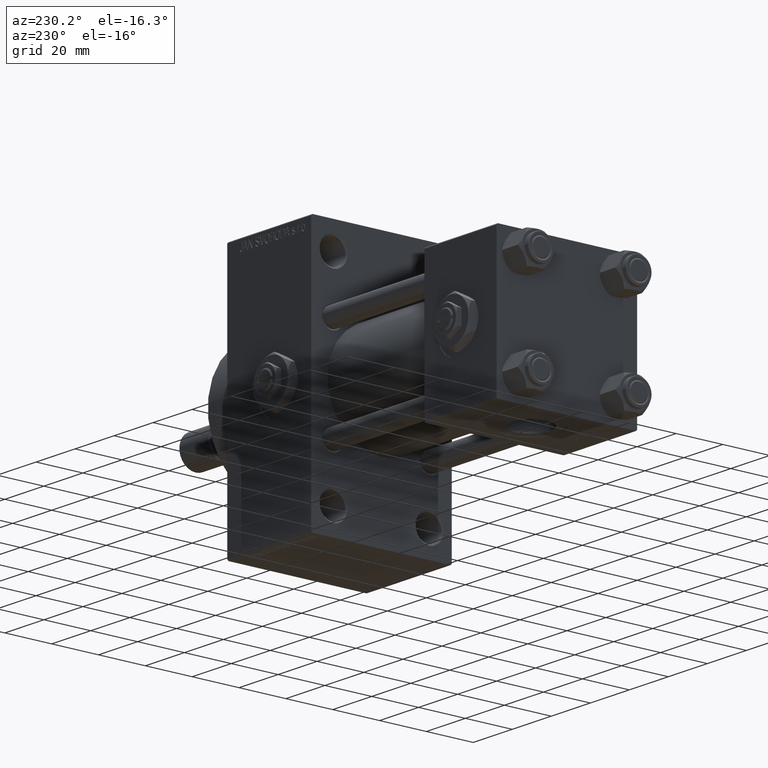
[diagram: clean part render]
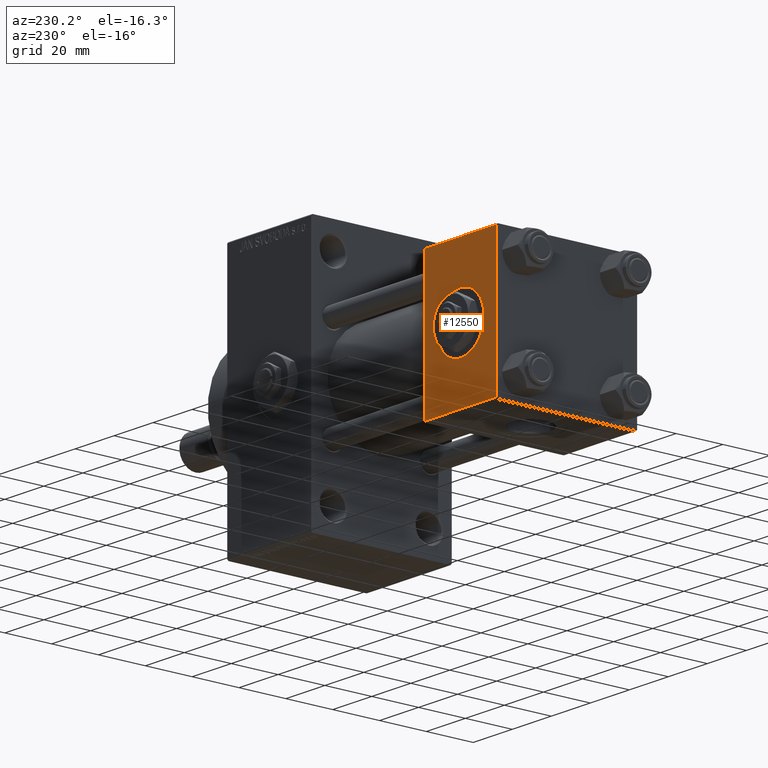
[diagram: same view with one face highlighted and labeled with its STEP entity id]
A machine part, auxiliary view. The second image highlights one B-rep face of the part: STEP entity #12550.
In plain terms, the highlighted planar face has unit normal (0, 1, 0).
Its self-contained STEP definition (entity closure, byte-faithful):
#724 = DIRECTION ( 'NONE',  ( 0.000000000000000000, 1.000000000000000000, 0.000000000000000000 ) ) ;
#2415 = EDGE_LOOP ( 'NONE', ( #31637, #33252 ) ) ;
#2650 = CARTESIAN_POINT ( 'NONE',  ( 37.00000000000000000, 29.99999999999999289, 29.50000000000000000 ) ) ;
#4778 = CARTESIAN_POINT ( 'NONE',  ( 18.50000000000000000, 29.99999999999999289, 0.000000000000000000 ) ) ;
#5692 = DIRECTION ( 'NONE',  ( 0.000000000000000000, 0.000000000000000000, -1.000000000000000000 ) ) ;
#7666 = AXIS2_PLACEMENT_3D ( 'NONE', #21751, #11175, #11426 ) ;
#11175 = DIRECTION ( 'NONE',  ( -0.000000000000000000, 1.000000000000000000, 0.000000000000000000 ) ) ;
#11426 = DIRECTION ( 'NONE',  ( 0.000000000000000000, -0.000000000000000000, 1.000000000000000000 ) ) ;
#12321 = DIRECTION ( 'NONE',  ( 0.000000000000000000, 0.000000000000000000, 1.000000000000000000 ) ) ;
#12550 = ADVANCED_FACE ( 'NONE', ( #33112, #40921 ), #33354, .T. ) ;
#14336 = CARTESIAN_POINT ( 'NONE',  ( 37.00000000000000000, 29.99999999999999289, -29.50000000000000000 ) ) ;
#14909 = VERTEX_POINT ( 'NONE', #21876 ) ;
#15308 = ORIENTED_EDGE ( 'NONE', *, *, #31042, .T. ) ;
#15556 = VECTOR ( 'NONE', #48557, 1000.000000000000000 ) ;
#15664 = CIRCLE ( 'NONE', #30946, 12.00000000000000178 ) ;
#17056 = EDGE_CURVE ( 'NONE', #42694, #25451, #47713, .T. ) ;
#18144 = VECTOR ( 'NONE', #5692, 1000.000000000000000 ) ;
#18804 = EDGE_LOOP ( 'NONE', ( #15308, #37614, #43048, #20027 ) ) ;
#19510 = VERTEX_POINT ( 'NONE', #45030 ) ;
#20027 = ORIENTED_EDGE ( 'NONE', *, *, #39450, .T. ) ;
#21751 = CARTESIAN_POINT ( 'NONE',  ( 37.00000000000000000, 29.99999999999999289, 30.00000000000000000 ) ) ;
#21876 = CARTESIAN_POINT ( 'NONE',  ( 18.50000000000000000, 29.99999999999999289, -12.00000000000000178 ) ) ;
#23361 = VERTEX_POINT ( 'NONE', #32439 ) ;
#24237 = CARTESIAN_POINT ( 'NONE',  ( 37.00000000000000000, 29.99999999999999289, 30.00000000000000000 ) ) ;
#25062 = DIRECTION ( 'NONE',  ( 1.000000000000000000, 0.000000000000000000, 0.000000000000000000 ) ) ;
#25451 = VERTEX_POINT ( 'NONE', #41256 ) ;
#27297 = DIRECTION ( 'NONE',  ( 0.000000000000000000, 0.000000000000000000, -1.000000000000000000 ) ) ;
#28031 = LINE ( 'NONE', #24237, #37033 ) ;
#28448 = CARTESIAN_POINT ( 'NONE',  ( 0.000000000000000000, 29.99999999999999289, 29.50000000000000000 ) ) ;
#28856 = VERTEX_POINT ( 'NONE', #35672 ) ;
#28901 = DIRECTION ( 'NONE',  ( 0.000000000000000000, 0.000000000000000000, 1.000000000000000000 ) ) ;
#29217 = VECTOR ( 'NONE', #25062, 1000.000000000000000 ) ;
#30434 = LINE ( 'NONE', #14336, #15556 ) ;
#30946 = AXIS2_PLACEMENT_3D ( 'NONE', #4778, #35992, #12321 ) ;
#31042 = EDGE_CURVE ( 'NONE', #19510, #28856, #28031, .T. ) ;
#31596 = CIRCLE ( 'NONE', #42847, 12.00000000000000178 ) ;
#31637 = ORIENTED_EDGE ( 'NONE', *, *, #36048, .F. ) ;
#32385 = CARTESIAN_POINT ( 'NONE',  ( 0.000000000000000000, 29.99999999999999289, 30.00000000000000000 ) ) ;
#32439 = CARTESIAN_POINT ( 'NONE',  ( 18.50000000000000000, 29.99999999999999289, 12.00000000000000178 ) ) ;
#33112 = FACE_BOUND ( 'NONE', #2415, .T. ) ;
#33252 = ORIENTED_EDGE ( 'NONE', *, *, #46110, .F. ) ;
#33354 = PLANE ( 'NONE',  #7666 ) ;
#35672 = CARTESIAN_POINT ( 'NONE',  ( 37.00000000000000000, 29.99999999999999289, -29.50000000000000000 ) ) ;
#35992 = DIRECTION ( 'NONE',  ( 0.000000000000000000, 1.000000000000000000, 0.000000000000000000 ) ) ;
#36048 = EDGE_CURVE ( 'NONE', #23361, #14909, #31596, .T. ) ;
#37033 = VECTOR ( 'NONE', #27297, 1000.000000000000000 ) ;
#37614 = ORIENTED_EDGE ( 'NONE', *, *, #39929, .T. ) ;
#38995 = CARTESIAN_POINT ( 'NONE',  ( 18.50000000000000000, 29.99999999999999289, 0.000000000000000000 ) ) ;
#39450 = EDGE_CURVE ( 'NONE', #42694, #19510, #48208, .T. ) ;
#39929 = EDGE_CURVE ( 'NONE', #28856, #25451, #30434, .T. ) ;
#40921 = FACE_OUTER_BOUND ( 'NONE', #18804, .T. ) ;
#41256 = CARTESIAN_POINT ( 'NONE',  ( 0.000000000000000000, 29.99999999999999289, -29.50000000000000000 ) ) ;
#42694 = VERTEX_POINT ( 'NONE', #28448 ) ;
#42847 = AXIS2_PLACEMENT_3D ( 'NONE', #38995, #724, #28901 ) ;
#43048 = ORIENTED_EDGE ( 'NONE', *, *, #17056, .F. ) ;
#45030 = CARTESIAN_POINT ( 'NONE',  ( 37.00000000000000000, 29.99999999999999289, 29.50000000000000000 ) ) ;
#46110 = EDGE_CURVE ( 'NONE', #14909, #23361, #15664, .T. ) ;
#47713 = LINE ( 'NONE', #32385, #18144 ) ;
#48208 = LINE ( 'NONE', #2650, #29217 ) ;
#48557 = DIRECTION ( 'NONE',  ( -1.000000000000000000, 0.000000000000000000, 0.000000000000000000 ) ) ;